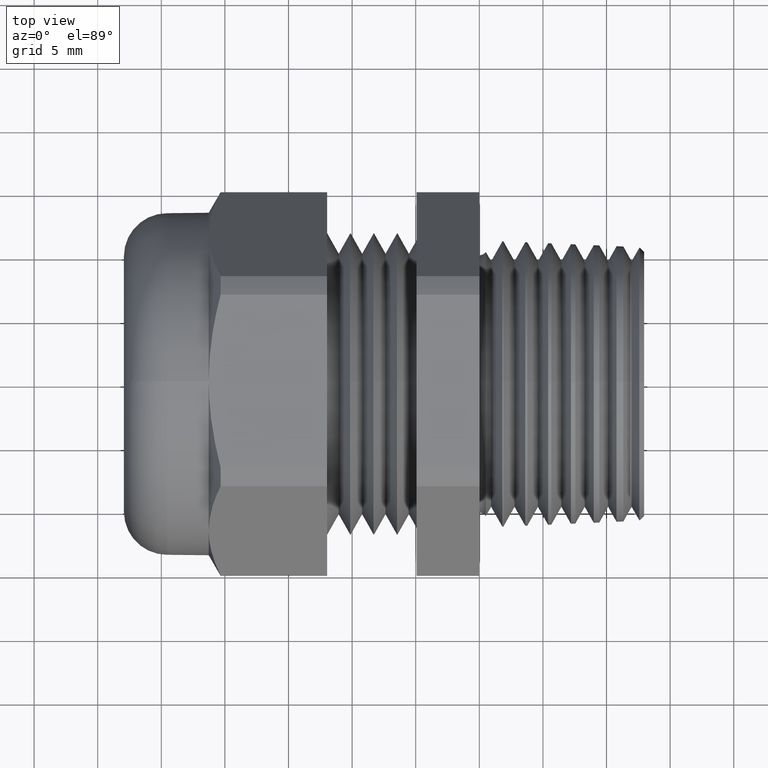
[diagram: clean part render]
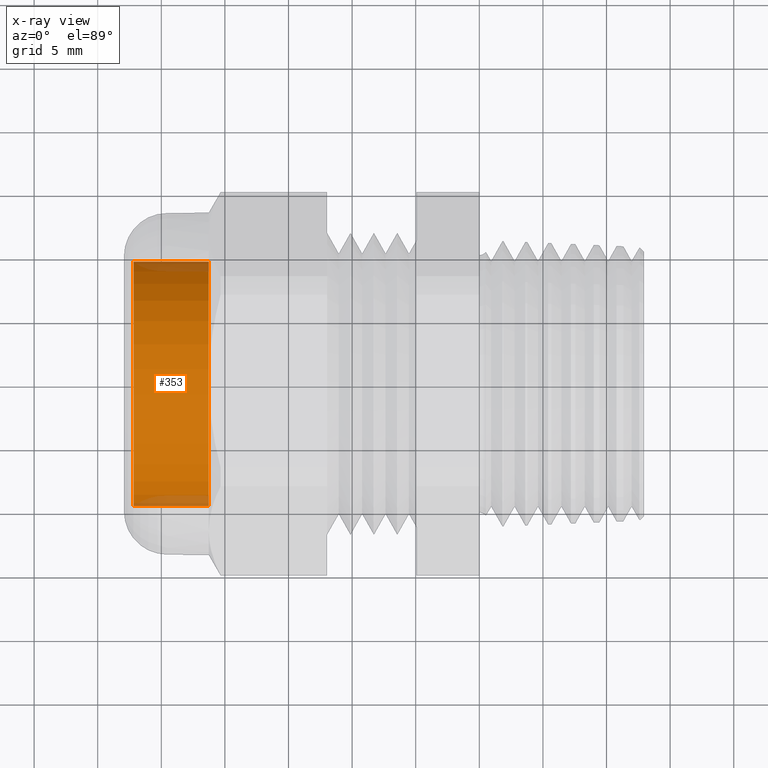
[diagram: x-ray — body ghosted, one internal face saturated and labeled with its STEP entity id]
A machine part, top view, then the same camera in x-ray: the body is ghosted and one INTERNAL B-rep face — a face not visible from any outside direction — is saturated and labeled: STEP entity #353.
In plain terms, the highlighted cylindrical surface (partial cylindrical patch) has radius 9.6076 mm, axis along (1, 0, 0).
Its self-contained STEP definition (entity closure, byte-faithful):
#294 = VERTEX_POINT ( 'NONE', #1737 ) ;
#295 = VERTEX_POINT ( 'NONE', #1736 ) ;
#322 = EDGE_CURVE ( 'NONE', #295, #356, #1810, .T. ) ;
#323 = ORIENTED_EDGE ( 'NONE', *, *, #388, .F. ) ;
#347 = EDGE_CURVE ( 'NONE', #294, #295, #1830, .T. ) ;
#349 = EDGE_LOOP ( 'NONE', ( #354, #355, #323, #390 ) ) ;
#353 = ADVANCED_FACE ( 'NONE', ( #1815 ), #1879, .T. ) ;
#354 = ORIENTED_EDGE ( 'NONE', *, *, #347, .T. ) ;
#355 = ORIENTED_EDGE ( 'NONE', *, *, #322, .T. ) ;
#356 = VERTEX_POINT ( 'NONE', #1878 ) ;
#388 = EDGE_CURVE ( 'NONE', #389, #356, #1940, .T. ) ;
#389 = VERTEX_POINT ( 'NONE', #1931 ) ;
#390 = ORIENTED_EDGE ( 'NONE', *, *, #391, .F. ) ;
#391 = EDGE_CURVE ( 'NONE', #294, #389, #1930, .T. ) ;
#1736 = CARTESIAN_POINT ( 'NONE',  ( -1.070000000000000100, -0.3782500000000003100, 4.632226517774865300E-017 ) ) ;
#1737 = CARTESIAN_POINT ( 'NONE',  ( -1.070000000000000100, 0.3782499999999999200, 0.0000000000000000000 ) ) ;
#1807 = DIRECTION ( 'NONE',  ( 1.000000000000000000, 1.214306433183765200E-016, 0.0000000000000000000 ) ) ;
#1808 = VECTOR ( 'NONE', #1807, 39.37007874015748100 ) ;
#1809 = CARTESIAN_POINT ( 'NONE',  ( 0.3764656411965715500, -0.3782500000000001400, 4.632226517774864700E-017 ) ) ;
#1810 = LINE ( 'NONE', #1809, #1808 ) ;
#1815 = FACE_OUTER_BOUND ( 'NONE', #349, .T. ) ;
#1827 = DIRECTION ( 'NONE',  ( 0.0000000000000000000, -1.000000000000000000, 0.0000000000000000000 ) ) ;
#1828 = DIRECTION ( 'NONE',  ( 1.000000000000000000, 1.214306433183765200E-016, 0.0000000000000000000 ) ) ;
#1829 = AXIS2_PLACEMENT_3D ( 'NONE', #1835, #1828, #1827 ) ;
#1830 = CIRCLE ( 'NONE', #1829, 0.3782500000000001400 ) ;
#1835 = CARTESIAN_POINT ( 'NONE',  ( -1.070000000000000100, -1.756452533484276900E-016, 0.0000000000000000000 ) ) ;
#1874 = DIRECTION ( 'NONE',  ( -1.805583604536855400E-016, 1.000000000000000000, 0.0000000000000000000 ) ) ;
#1875 = DIRECTION ( 'NONE',  ( 1.000000000000000000, 1.214306433183765200E-016, 0.0000000000000000000 ) ) ;
#1876 = CARTESIAN_POINT ( 'NONE',  ( 0.3764656411965715000, 0.0000000000000000000, 0.0000000000000000000 ) ) ;
#1877 = AXIS2_PLACEMENT_3D ( 'NONE', #1876, #1875, #1874 ) ;
#1878 = CARTESIAN_POINT ( 'NONE',  ( -0.8375000000000000200, -0.3782500000000002500, 4.632226517774864700E-017 ) ) ;
#1879 = CYLINDRICAL_SURFACE ( 'NONE', #1877, 0.3782500000000001400 ) ;
#1927 = DIRECTION ( 'NONE',  ( 1.000000000000000000, 1.214306433183765200E-016, 0.0000000000000000000 ) ) ;
#1928 = VECTOR ( 'NONE', #1927, 39.37007874015748100 ) ;
#1929 = CARTESIAN_POINT ( 'NONE',  ( 0.3764656411965714400, 0.3782500000000001400, 0.0000000000000000000 ) ) ;
#1930 = LINE ( 'NONE', #1929, #1928 ) ;
#1931 = CARTESIAN_POINT ( 'NONE',  ( -0.8375000000000000200, 0.3782499999999999800, 0.0000000000000000000 ) ) ;
#1932 = DIRECTION ( 'NONE',  ( 0.0000000000000000000, 1.000000000000000000, 0.0000000000000000000 ) ) ;
#1933 = DIRECTION ( 'NONE',  ( 1.000000000000000000, 1.214306433183765200E-016, 0.0000000000000000000 ) ) ;
#1934 = CARTESIAN_POINT ( 'NONE',  ( -0.8375000000000000200, -1.474126287769051200E-016, 0.0000000000000000000 ) ) ;
#1935 = AXIS2_PLACEMENT_3D ( 'NONE', #1934, #1933, #1932 ) ;
#1940 = CIRCLE ( 'NONE', #1935, 0.3782500000000001400 ) ;